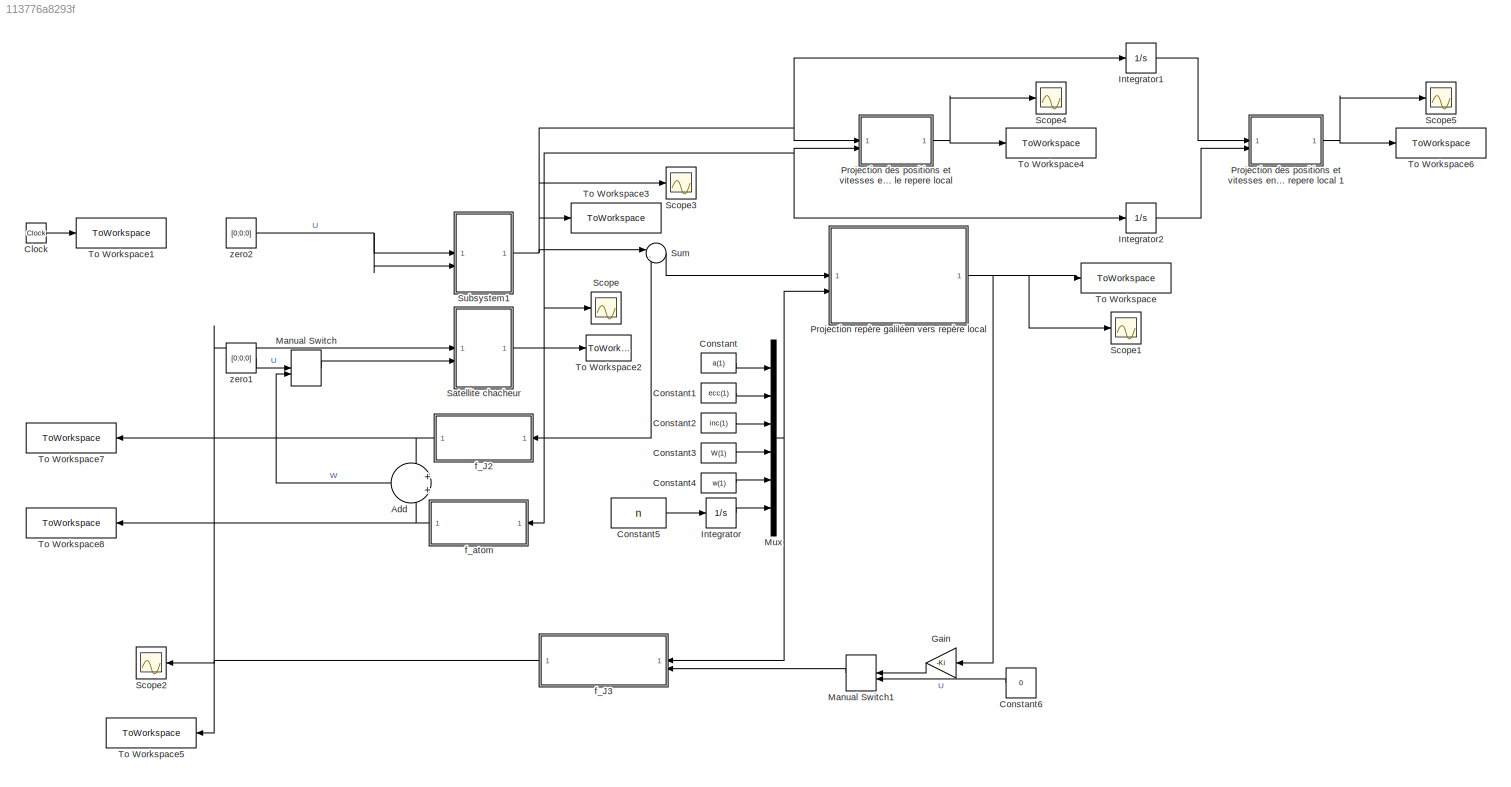
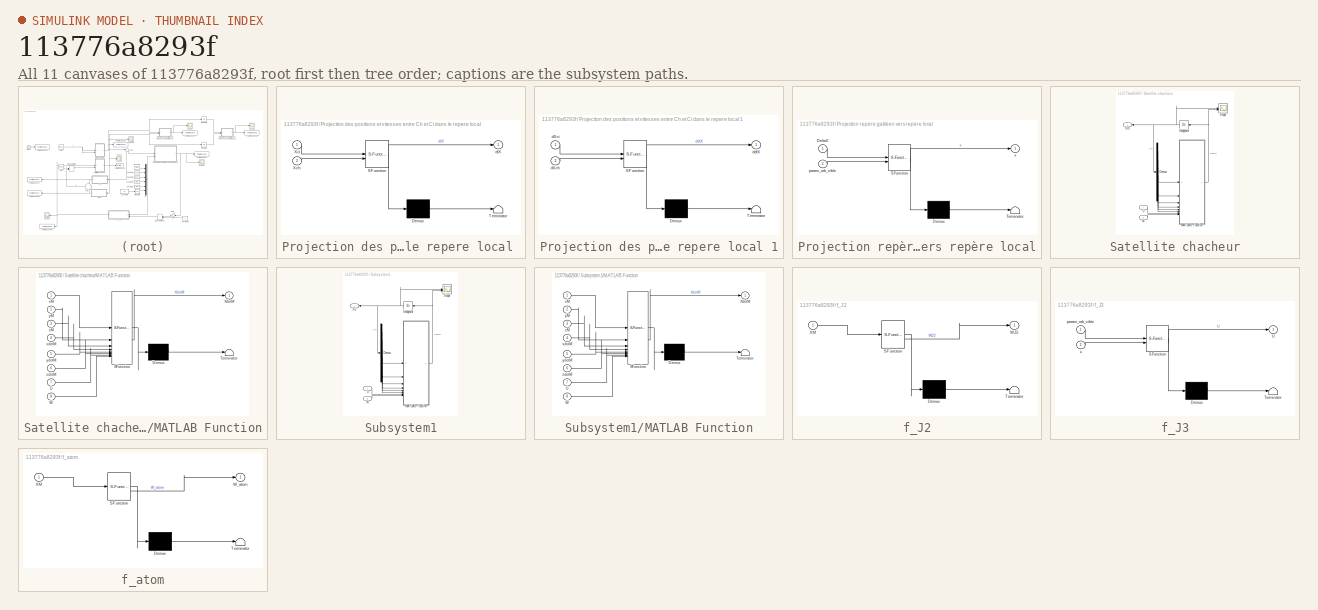
[diagram: thumbnail index - all 11 canvases of the model, root first then tree order]
MODEL slx_113776a8293f
KIND model
CONFIG AbsTol = auto
CONFIG EnableMultiTasking = off
CONFIG FixedStep = 1
CONFIG MaxStep = auto
CONFIG MinStep = auto
CONFIG RelTol = 1e-3
CONFIG SampleTimeConstraint = Unconstrained
CONFIG SolverName = FixedStepAuto
CONFIG StartTime = 0.0
CONFIG StopTime = t_final*3
BLOCK [Sum] Add
  NameLocation = top
BLOCK [Clock] Clock
  DisplayTime = on
BLOCK [Constant] Constant
  Value = a(1)
BLOCK [Constant] Constant1
  Value = ecc(1)
BLOCK [Constant] Constant2
  Value = inc(1)
BLOCK [Constant] Constant3
  Value = W(1)
BLOCK [Constant] Constant4
  Value = w(1)
BLOCK [Constant] Constant5
  Value = n
BLOCK [Constant] Constant6
  NameLocation = top
  Value = 0
BLOCK [Gain] Gain
  Gain = -Ki
  Multiplication = Matrix(K*u)
  NameLocation = top
BLOCK [Integrator] Integrator
  InitialCondition = nu(1)
BLOCK [Integrator] Integrator1
BLOCK [Integrator] Integrator2
BLOCK [ManualSwitch] Manual Switch
  CurrentSetting = 0
BLOCK [ManualSwitch] Manual Switch1
BLOCK [Mux] Mux
  DisplayOption = bar
  Inputs = 6
BLOCK [SubSystem] Projection des positions et vitesses entre Ch et Ci dans le repere local 
  ErrorFcn = Stateflow.Translate.translate
  LibrarySourceBlock = simulink/User-Defined\nFunctions/MATLAB Function
  PermitHierarchicalResolution = ExplicitOnly
  SFBlockType = MATLAB Function
  TreatAsAtomicUnit = on
BLOCK [Demux] Projection des positions et vitesses entre Ch et Ci dans le repere local / Demux 
  Outputs = 1
BLOCK [S-Function] Projection des positions et vitesses entre Ch et Ci dans le repere local / SFunction 
  EnableBusSupport = on
  FunctionName = sf_sfun
  PortCounts = [2 2]
  SFcnIsStateOwnerBlock = off
  SFunctionDeploymentMode = off
  Tag = Stateflow S-Function 7
BLOCK [Terminator] Projection des positions et vitesses entre Ch et Ci dans le repere local / Terminator 
BLOCK [Inport] Projection des positions et vitesses entre Ch et Ci dans le repere local /Xch
  Port = 2
BLOCK [Inport] Projection des positions et vitesses entre Ch et Ci dans le repere local /Xci
BLOCK [Outport] Projection des positions et vitesses entre Ch et Ci dans le repere local /dtX
BLOCK [SubSystem] Projection des positions et vitesses entre Ch et Ci dans le repere local 1
  ErrorFcn = Stateflow.Translate.translate
  LibrarySourceBlock = simulink/User-Defined\nFunctions/MATLAB Function
  PermitHierarchicalResolution = ExplicitOnly
  SFBlockType = MATLAB Function
  TreatAsAtomicUnit = on
BLOCK [Demux] Projection des positions et vitesses entre Ch et Ci dans le repere local 1/ Demux 
  Outputs = 1
BLOCK [S-Function] Projection des positions et vitesses entre Ch et Ci dans le repere local 1/ SFunction 
  EnableBusSupport = on
  FunctionName = sf_sfun
  PortCounts = [2 2]
  SFcnIsStateOwnerBlock = off
  SFunctionDeploymentMode = off
  Tag = Stateflow S-Function 8
BLOCK [Terminator] Projection des positions et vitesses entre Ch et Ci dans le repere local 1/ Terminator 
BLOCK [Inport] Projection des positions et vitesses entre Ch et Ci dans le repere local 1/dXch
  Port = 2
BLOCK [Inport] Projection des positions et vitesses entre Ch et Ci dans le repere local 1/dXci
BLOCK [Outport] Projection des positions et vitesses entre Ch et Ci dans le repere local 1/ddtX
BLOCK [SubSystem] Projection repère galiléen vers repère local
  ErrorFcn = Stateflow.Translate.translate
  LibrarySourceBlock = simulink/User-Defined\nFunctions/MATLAB Function
  PermitHierarchicalResolution = ExplicitOnly
  SFBlockType = MATLAB Function
  TreatAsAtomicUnit = on
BLOCK [Demux] Projection repère galiléen vers repère local/ Demux 
  Outputs = 1
BLOCK [S-Function] Projection repère galiléen vers repère local/ SFunction 
  EnableBusSupport = on
  FunctionName = sf_sfun
  PortCounts = [2 2]
  SFcnIsStateOwnerBlock = off
  SFunctionDeploymentMode = off
  Tag = Stateflow S-Function 5
BLOCK [Terminator] Projection repère galiléen vers repère local/ Terminator 
BLOCK [Inport] Projection repère galiléen vers repère local/DeltaX
BLOCK [Inport] Projection repère galiléen vers repère local/param_orb_cible
  Port = 2
BLOCK [Outport] Projection repère galiléen vers repère local/x
BLOCK [SubSystem] Satellite chacheur
BLOCK [Demux] Satellite chacheur/Demux
  Outputs = 6
BLOCK [Integrator] Satellite chacheur/Integrator
  InitialCondition = X_init_chasseur
  NameLocation = top
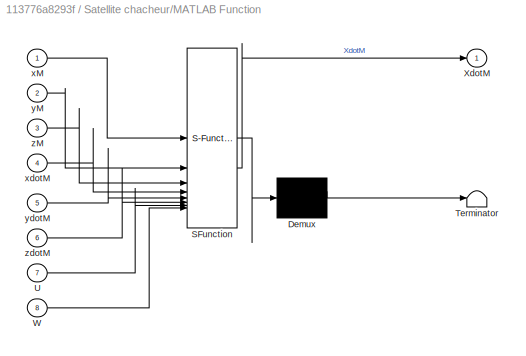
BLOCK [SubSystem] Satellite chacheur/MATLAB Function
  ErrorFcn = Stateflow.Translate.translate
  LibrarySourceBlock = simulink/User-Defined\nFunctions/MATLAB Function
  PermitHierarchicalResolution = ExplicitOnly
  SFBlockType = MATLAB Function
  TreatAsAtomicUnit = on
BLOCK [Demux] Satellite chacheur/MATLAB Function/ Demux 
  Outputs = 1
BLOCK [S-Function] Satellite chacheur/MATLAB Function/ SFunction 
  EnableBusSupport = on
  FunctionName = sf_sfun
  PortCounts = [8 2]
  SFcnIsStateOwnerBlock = off
  SFunctionDeploymentMode = off
  Tag = Stateflow S-Function 2
BLOCK [Terminator] Satellite chacheur/MATLAB Function/ Terminator 
BLOCK [Inport] Satellite chacheur/MATLAB Function/U
  Port = 7
BLOCK [Inport] Satellite chacheur/MATLAB Function/W
  Port = 8
BLOCK [Outport] Satellite chacheur/MATLAB Function/XdotM
BLOCK [Inport] Satellite chacheur/MATLAB Function/xM
BLOCK [Inport] Satellite chacheur/MATLAB Function/xdotM
  Port = 4
BLOCK [Inport] Satellite chacheur/MATLAB Function/yM
  Port = 2
BLOCK [Inport] Satellite chacheur/MATLAB Function/ydotM
  Port = 5
BLOCK [Inport] Satellite chacheur/MATLAB Function/zM
  Port = 3
BLOCK [Inport] Satellite chacheur/MATLAB Function/zdotM
  Port = 6
BLOCK [Scope] Satellite chacheur/Scope
  Floating = off
  NumInputPorts = 2
  ScopeSpecificationString = Simulink.scopes.TimeScopeBlockCfg('CurrentConfiguration', extmgr.ConfigurationSet(extmgr.Configuration('Core','General UI',true),extmgr.Configuration('Core','Source UI',true),extmgr.Configuration('Sources','WiredSimulink',true),extmgr.Configuration('Visuals','Time Domain',true,'SerializedDisplays',{struct('MinYLimReal','-8835072.30203','MaxYLimReal','8835014.02695','YLabelReal','','MinYLimMag','  ...<+2145ch>
BLOCK [Inport] Satellite chacheur/U
BLOCK [Inport] Satellite chacheur/W
  Port = 2
BLOCK [Outport] Satellite chacheur/Xch
  NameLocation = top
BLOCK [Scope] Scope
  Floating = off
  NumInputPorts = 1
  ScopeSpecificationString = Simulink.scopes.TimeScopeBlockCfg('CurrentConfiguration', extmgr.ConfigurationSet(extmgr.Configuration('Core','General UI',true),extmgr.Configuration('Core','Source UI',true),extmgr.Configuration('Sources','WiredSimulink',true,'DataLoggingVariableName','ScopeData1'),extmgr.Configuration('Visuals','Time Domain',true,'SerializedDisplays',{struct('MinYLimReal','-8835112.03095','MaxYLimReal','8835012....<+1582ch>
BLOCK [Scope] Scope1
  Floating = off
  NumInputPorts = 1
  ScopeSpecificationString = Simulink.scopes.TimeScopeBlockCfg('CurrentConfiguration', extmgr.ConfigurationSet(extmgr.Configuration('Core','General UI',true),extmgr.Configuration('Core','Source UI',true),extmgr.Configuration('Sources','WiredSimulink',true,'DataLoggingVariableName','ScopeData2'),extmgr.Configuration('Visuals','Time Domain',true,'SerializedDisplays',{struct('MinYLimReal','-397991.2892','MaxYLimReal','64834.2333...<+1898ch>
BLOCK [Scope] Scope2
  Floating = off
  NameLocation = top
  NumInputPorts = 1
  ScopeSpecificationString = Simulink.scopes.TimeScopeBlockCfg('CurrentConfiguration', extmgr.ConfigurationSet(extmgr.Configuration('Core','General UI',true),extmgr.Configuration('Core','Source UI',true),extmgr.Configuration('Sources','WiredSimulink',true,'DataLoggingVariableName','ScopeData3'),extmgr.Configuration('Visuals','Time Domain',true,'SerializedDisplays',{struct('MinYLimReal','-0.01425','MaxYLimReal','0.01433','YLab...<+1425ch>
BLOCK [Scope] Scope3
  Floating = off
  NumInputPorts = 1
  ScopeSpecificationString = Simulink.scopes.TimeScopeBlockCfg('CurrentConfiguration', extmgr.ConfigurationSet(extmgr.Configuration('Core','General UI',true),extmgr.Configuration('Core','Source UI',true),extmgr.Configuration('Sources','WiredSimulink',true,'DataLoggingVariableName','ScopeData1'),extmgr.Configuration('Visuals','Time Domain',true,'SerializedDisplays',{struct('MinYLimReal','-8834999.95434','MaxYLimReal','8834999....<+1534ch>
BLOCK [Scope] Scope4
  Floating = off
  NumInputPorts = 1
  ScopeSpecificationString = Simulink.scopes.TimeScopeBlockCfg('CurrentConfiguration', extmgr.ConfigurationSet(extmgr.Configuration('Core','General UI',true),extmgr.Configuration('Core','Source UI',true),extmgr.Configuration('Sources','WiredSimulink',true,'DataLoggingVariableName','ScopeData1'),extmgr.Configuration('Visuals','Time Domain',true,'SerializedDisplays',{struct('MinYLimReal','-13185.10691','MaxYLimReal','13199.2558...<+2026ch>
BLOCK [Scope] Scope5
  Floating = off
  NumInputPorts = 1
  ScopeSpecificationString = Simulink.scopes.TimeScopeBlockCfg('CurrentConfiguration', extmgr.ConfigurationSet(extmgr.Configuration('Core','General UI',true),extmgr.Configuration('Core','Source UI',true),extmgr.Configuration('Sources','WiredSimulink',true,'DataLoggingVariableName','ScopeData1'),extmgr.Configuration('Visuals','Time Domain',true,'SerializedDisplays',{struct('MinYLimReal','-432539.00472','MaxYLimReal','374930.57...<+2034ch>
BLOCK [SubSystem] Subsystem1
BLOCK [Demux] Subsystem1/Demux
  Outputs = 6
BLOCK [Integrator] Subsystem1/Integrator
  InitialCondition = X_init_cible
  NameLocation = top
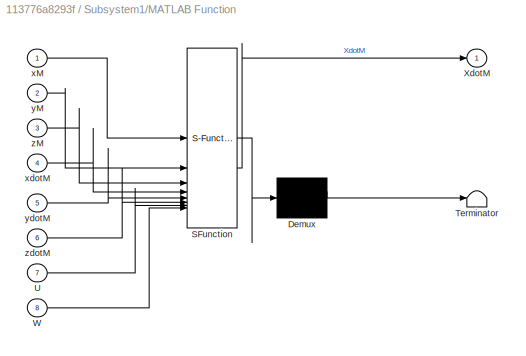
BLOCK [SubSystem] Subsystem1/MATLAB Function
  ErrorFcn = Stateflow.Translate.translate
  LibrarySourceBlock = simulink/User-Defined\nFunctions/MATLAB Function
  PermitHierarchicalResolution = ExplicitOnly
  SFBlockType = MATLAB Function
  TreatAsAtomicUnit = on
BLOCK [Demux] Subsystem1/MATLAB Function/ Demux 
  Outputs = 1
BLOCK [S-Function] Subsystem1/MATLAB Function/ SFunction 
  EnableBusSupport = on
  FunctionName = sf_sfun
  PortCounts = [8 2]
  SFcnIsStateOwnerBlock = off
  SFunctionDeploymentMode = off
  Tag = Stateflow S-Function 1
BLOCK [Terminator] Subsystem1/MATLAB Function/ Terminator 
BLOCK [Inport] Subsystem1/MATLAB Function/U
  Port = 7
BLOCK [Inport] Subsystem1/MATLAB Function/W
  Port = 8
BLOCK [Outport] Subsystem1/MATLAB Function/XdotM
BLOCK [Inport] Subsystem1/MATLAB Function/xM
BLOCK [Inport] Subsystem1/MATLAB Function/xdotM
  Port = 4
BLOCK [Inport] Subsystem1/MATLAB Function/yM
  Port = 2
BLOCK [Inport] Subsystem1/MATLAB Function/ydotM
  Port = 5
BLOCK [Inport] Subsystem1/MATLAB Function/zM
  Port = 3
BLOCK [Inport] Subsystem1/MATLAB Function/zdotM
  Port = 6
BLOCK [Scope] Subsystem1/Scope
  Floating = off
  NumInputPorts = 2
  ScopeSpecificationString = Simulink.scopes.TimeScopeBlockCfg('CurrentConfiguration', extmgr.ConfigurationSet(extmgr.Configuration('Core','General UI',true),extmgr.Configuration('Core','Source UI',true),extmgr.Configuration('Sources','WiredSimulink',true),extmgr.Configuration('Visuals','Time Domain',true,'SerializedDisplays',{struct('MinYLimReal','-8834999.95434','MaxYLimReal','8834999.99493','YLabelReal','','MinYLimMag','  ...<+2144ch>
BLOCK [Inport] Subsystem1/U
BLOCK [Inport] Subsystem1/W
  Port = 2
BLOCK [Outport] Subsystem1/Xci
  NameLocation = top
BLOCK [Sum] Sum
  Inputs = |-+
BLOCK [ToWorkspace] To Workspace
  FixptAsFi = on
  MaxDataPoints = inf
  SampleTime = -1
  VariableName = x
BLOCK [ToWorkspace] To Workspace1
  FixptAsFi = on
  MaxDataPoints = inf
  SampleTime = -1
  VariableName = t
BLOCK [ToWorkspace] To Workspace2
  FixptAsFi = on
  MaxDataPoints = inf
  SampleTime = -1
  VariableName = Xch
BLOCK [ToWorkspace] To Workspace3
  FixptAsFi = on
  MaxDataPoints = inf
  SampleTime = -1
  VariableName = Xci
BLOCK [ToWorkspace] To Workspace4
  FixptAsFi = on
  MaxDataPoints = inf
  SampleTime = -1
  VariableName = dtX
BLOCK [ToWorkspace] To Workspace5
  MaxDataPoints = inf
  NameLocation = top
  SampleTime = -1
  VariableName = U
BLOCK [ToWorkspace] To Workspace6
  FixptAsFi = on
  MaxDataPoints = inf
  SampleTime = -1
  VariableName = ddtX
BLOCK [ToWorkspace] To Workspace7
  FixptAsFi = on
  MaxDataPoints = inf
  NameLocation = top
  SampleTime = -1
  VariableName = f_J2
BLOCK [ToWorkspace] To Workspace8
  FixptAsFi = on
  MaxDataPoints = inf
  NameLocation = top
  SampleTime = -1
  VariableName = f_atom
BLOCK [SubSystem] f_J2
  ErrorFcn = Stateflow.Translate.translate
  LibrarySourceBlock = simulink/User-Defined\nFunctions/MATLAB Function
  NameLocation = top
  PermitHierarchicalResolution = ExplicitOnly
  SFBlockType = MATLAB Function
  TreatAsAtomicUnit = on
BLOCK [Demux] f_J2/ Demux 
  Outputs = 1
BLOCK [S-Function] f_J2/ SFunction 
  EnableBusSupport = on
  FunctionName = sf_sfun
  PortCounts = [1 2]
  SFcnIsStateOwnerBlock = off
  SFunctionDeploymentMode = off
  Tag = Stateflow S-Function 4
BLOCK [Terminator] f_J2/ Terminator 
BLOCK [Outport] f_J2/WJ2
BLOCK [Inport] f_J2/XM
BLOCK [SubSystem] f_J3
  ErrorFcn = Stateflow.Translate.translate
  LibrarySourceBlock = simulink/User-Defined\nFunctions/MATLAB Function
  NameLocation = top
  PermitHierarchicalResolution = ExplicitOnly
  SFBlockType = MATLAB Function
  TreatAsAtomicUnit = on
BLOCK [Demux] f_J3/ Demux 
  Outputs = 1
BLOCK [S-Function] f_J3/ SFunction 
  EnableBusSupport = on
  FunctionName = sf_sfun
  PortCounts = [2 2]
  SFcnIsStateOwnerBlock = off
  SFunctionDeploymentMode = off
  Tag = Stateflow S-Function 6
BLOCK [Terminator] f_J3/ Terminator 
BLOCK [Outport] f_J3/U
BLOCK [Inport] f_J3/param_orb_cible
BLOCK [Inport] f_J3/u
  Port = 2
BLOCK [SubSystem] f_atom
  ErrorFcn = Stateflow.Translate.translate
  LibrarySourceBlock = simulink/User-Defined\nFunctions/MATLAB Function
  NameLocation = top
  PermitHierarchicalResolution = ExplicitOnly
  SFBlockType = MATLAB Function
  TreatAsAtomicUnit = on
BLOCK [Demux] f_atom/ Demux 
  Outputs = 1
BLOCK [S-Function] f_atom/ SFunction 
  EnableBusSupport = on
  FunctionName = sf_sfun
  PortCounts = [1 2]
  SFcnIsStateOwnerBlock = off
  SFunctionDeploymentMode = off
  Tag = Stateflow S-Function 3
BLOCK [Terminator] f_atom/ Terminator 
BLOCK [Outport] f_atom/W_atom
BLOCK [Inport] f_atom/XM
BLOCK [Constant] zero1
  Value = [0;0;0]
BLOCK [Constant] zero2
  Value = [0;0;0]
LINE Add:1 -> Manual Switch:2
LINE Clock:1 -> To Workspace1:1
LINE Constant1:1 -> Mux:2
LINE Constant2:1 -> Mux:3
LINE Constant3:1 -> Mux:4
LINE Constant4:1 -> Mux:5
LINE Constant5:1 -> Integrator:1
LINE Constant6:1 -> Manual Switch1:2
LINE Constant:1 -> Mux:1
LINE Gain:1 -> Manual Switch1:1
LINE Integrator1:1 -> Projection des positions et vitesses entre Ch et Ci dans le repere local 1:1
LINE Integrator2:1 -> Projection des positions et vitesses entre Ch et Ci dans le repere local 1:2
LINE Integrator:1 -> Mux:6
LINE Manual Switch1:1 -> f_J3:2
LINE Manual Switch:1 -> Satellite chacheur:2
NET Mux:1 -> Projection repère galiléen vers repère local:2, f_J3:1
NET Projection des positions et vitesses entre Ch et Ci dans le repere local 1:1 -> Scope5:1, To Workspace6:1
NET Projection des positions et vitesses entre Ch et Ci dans le repere local :1 -> Scope4:1, To Workspace4:1
NET Projection repère galiléen vers repère local:1 -> Gain:1, Scope1:1, To Workspace:1
LINE Satellite chacheur/Demux:1 -> Satellite chacheur/MATLAB Function:1
LINE Satellite chacheur/Demux:2 -> Satellite chacheur/MATLAB Function:2
LINE Satellite chacheur/Demux:3 -> Satellite chacheur/MATLAB Function:3
LINE Satellite chacheur/Demux:4 -> Satellite chacheur/MATLAB Function:4
LINE Satellite chacheur/Demux:5 -> Satellite chacheur/MATLAB Function:5
LINE Satellite chacheur/Demux:6 -> Satellite chacheur/MATLAB Function:6
NET Satellite chacheur/Integrator:1 -> Satellite chacheur/Demux:1, Satellite chacheur/Scope:1, Satellite chacheur/Xch:1
NET Satellite chacheur/MATLAB Function:1 -> Satellite chacheur/Integrator:1, Satellite chacheur/Scope:2
LINE Satellite chacheur/U:1 -> Satellite chacheur/MATLAB Function:7
LINE Satellite chacheur/W:1 -> Satellite chacheur/MATLAB Function:8
NET Satellite chacheur:1 -> Integrator2:1, Projection des positions et vitesses entre Ch et Ci dans le repere local :2, Scope:1, Sum:2, To Workspace2:1, f_J2:1, f_atom:1
LINE Subsystem1/Demux:1 -> Subsystem1/MATLAB Function:1
LINE Subsystem1/Demux:2 -> Subsystem1/MATLAB Function:2
LINE Subsystem1/Demux:3 -> Subsystem1/MATLAB Function:3
LINE Subsystem1/Demux:4 -> Subsystem1/MATLAB Function:4
LINE Subsystem1/Demux:5 -> Subsystem1/MATLAB Function:5
LINE Subsystem1/Demux:6 -> Subsystem1/MATLAB Function:6
NET Subsystem1/Integrator:1 -> Subsystem1/Demux:1, Subsystem1/Scope:1, Subsystem1/Xci:1
NET Subsystem1/MATLAB Function:1 -> Subsystem1/Integrator:1, Subsystem1/Scope:2
LINE Subsystem1/U:1 -> Subsystem1/MATLAB Function:7
LINE Subsystem1/W:1 -> Subsystem1/MATLAB Function:8
NET Subsystem1:1 -> Integrator1:1, Projection des positions et vitesses entre Ch et Ci dans le repere local :1, Scope3:1, Sum:1, To Workspace3:1
LINE Sum:1 -> Projection repère galiléen vers repère local:1
NET f_J2:1 -> Add:1, To Workspace7:1
NET f_J3:1 -> Satellite chacheur:1, Scope2:1, To Workspace5:1
NET f_atom:1 -> Add:2, To Workspace8:1
LINE zero1:1 -> Manual Switch:1
NET zero2:1 -> Subsystem1:1, Subsystem1:2
note: NET lines group one-source signal fan-out (src -> all destinations, sorted); 1:1 wires keep LINE
CHART Subsystem1/MATLAB Function states=1 transitions=1
  STATE_LABEL 'eML_blk_kernel()'
  STATE_LABEL 'SCRIPT:\nfunction XdotM = f(xM,yM,zM,xdotM,ydotM,zdotM, U, W)\nmu = 3.986e14; \nBW = [  zeros(3,3);\n        eye(3)];\n\nBU = [  eye(3);\n        zeros(3,3)];\n\n\nXdotM = [   xdotM;\n            ydotM;\n            zdotM;\n            -mu/sqrt((xM^2 + yM^2 + zM^2)^3)*xM;\n            -mu/sqrt((xM^2 + yM^2 + zM^2)^3)*yM;\n            -mu/sqrt((xM^2 + yM^2 + zM^2)^3)*zM] + BU*U + BW*W;\n            \n \n'
CHART Satellite chacheur/MATLAB Function states=1 transitions=1
  STATE_LABEL 'eML_blk_kernel()'
  STATE_LABEL 'SCRIPT:\nfunction XdotM = f(xM,yM,zM,xdotM,ydotM,zdotM, U, W)\nmu = 3.986e14; \nBW = [  zeros(3,3);\n        eye(3)];\n\nBU = [  zeros(3,3);  \n        eye(3)     ];\n\n\nXdotM = [   xdotM;\n            ydotM;\n            zdotM;\n            -mu/sqrt((xM^2 + yM^2 + zM^2)^3)*xM;\n            -mu/sqrt((xM^2 + yM^2 + zM^2)^3)*yM;\n            -mu/sqrt((xM^2 + yM^2 + zM^2)^3)*zM] + BU*U + BW*W;\n            \n \n'
CHART f_atom states=1 transitions=1
  STATE_LABEL 'eML_blk_kernel()'
  STATE_LABEL 'SCRIPT:\nfunction W_atom = f_atom(XM)\n\nrho_0 = 6.3e-13; \nrho = rho_0; \nS = 2; \nm = 191.1; \nCD = 2; \n\nW_atom = [  -rho*S*CD*sqrt(XM(4)^2+XM(5)^2+XM(6)^2)/2/m*XM(4)\n            -rho*S*CD*sqrt(XM(4)^2+XM(5)^2+XM(6)^2)/2/m*XM(5)\n            -rho*S*CD*sqrt(XM(4)^2+XM(5)^2+XM(6)^2)/2/m*XM(6) ]; \n'
CHART f_J2 states=1 transitions=1
  STATE_LABEL 'eML_blk_kernel()'
  STATE_LABEL 'SCRIPT:\nfunction WJ2 = fJ2(XM)\n\nmu = 3.986e14;          % constante gravitationnnelle \nJ2 = 1.082616e-3;       % second harmonique \nReq = 6378e3;           % rayon terrestre (m)\nWJ2 = 1/2*mu*J2*Req*Req*(3/sqrt(XM(1)^2+XM(2)^2+XM(3)^2)^4 - 15*XM(3)/sqrt(XM(1)^2+XM(2)^2+XM(3)^2)^6)*[XM(1);XM(2);XM(3)]/sqrt(XM(1)^2+XM(2)^2+XM(3)^2); \n'
CHART Projection repère galiléen vers repère local states=1 transitions=1
  STATE_LABEL 'eML_blk_kernel()'
  STATE_LABEL 'SCRIPT:\nfunction x = gali2loc(DeltaX,param_orb_cible)\n\nmu = 3.986e14;\n\nDelta_pos_gali = DeltaX(1:3);\nDelta_vit_gali = DeltaX(4:6);\na1 = param_orb_cible(1);\necc1 = param_orb_cible(2);\ninc1 = param_orb_cible(3);\nW1 = param_orb_cible(4);\nw1 = param_orb_cible(5);\nnu1 = param_orb_cible(6);\n\n P_gali2loc = [cos(W1)*cos(w1+nu1)-sin(W1)*cos(inc1)*sin(w1+nu1),...\n     cos(W1)*sin(w1+nu1)+sin(W1)*cos(inc1)*c...<+497ch>'
CHART f_J3 states=1 transitions=1
  STATE_LABEL 'eML_blk_kernel()'
  STATE_LABEL 'SCRIPT:\nfunction U = loc2gali(param_orb_cible,u)\n\nmu = 3.986e14;\n\nux_loc = u(1);\nuy_loc = u(2);\nuz_loc = u(3);\na1 = param_orb_cible(1);\necc1 = param_orb_cible(2);\ninc1 = param_orb_cible(3);\nW1 = param_orb_cible(4);\nw1 = param_orb_cible(5);\nnu1 = param_orb_cible(6);\n\n uloc=[ux_loc;uy_loc;uz_loc];\n P_gali2loc = [cos(W1)*cos(w1+nu1)-sin(W1)*cos(inc1)*sin(w1+nu1),...\n     cos(W1)*sin(w1+nu1)+sin(W1)*c...<+315ch>'
CHART Projection des positions et vitesses 
entre Ch et Ci 
dans le repere local  states=1 transitions=1
  STATE_LABEL 'eML_blk_kernel()'
  STATE_LABEL 'SCRIPT:\nfunction dtX = pos_vel(Xci,Xch)\n\ndtX = Xch-Xci;\n'
CHART Projection des positions et vitesses 
entre Ch et Ci 
dans le repere local 1 states=1 transitions=1
  STATE_LABEL 'eML_blk_kernel()'
  STATE_LABEL 'SCRIPT:\nfunction ddtX = pos_vel(dXci,dXch)\n\nddtX = dXch-dXci;\n'
CHART  states=0 transitions=0
CHART  states=0 transitions=0
CHART  states=0 transitions=0
CHART  states=0 transitions=0
CHART  states=0 transitions=0
CHART  states=0 transitions=0
CHART  states=0 transitions=0
CHART  states=0 transitions=0
